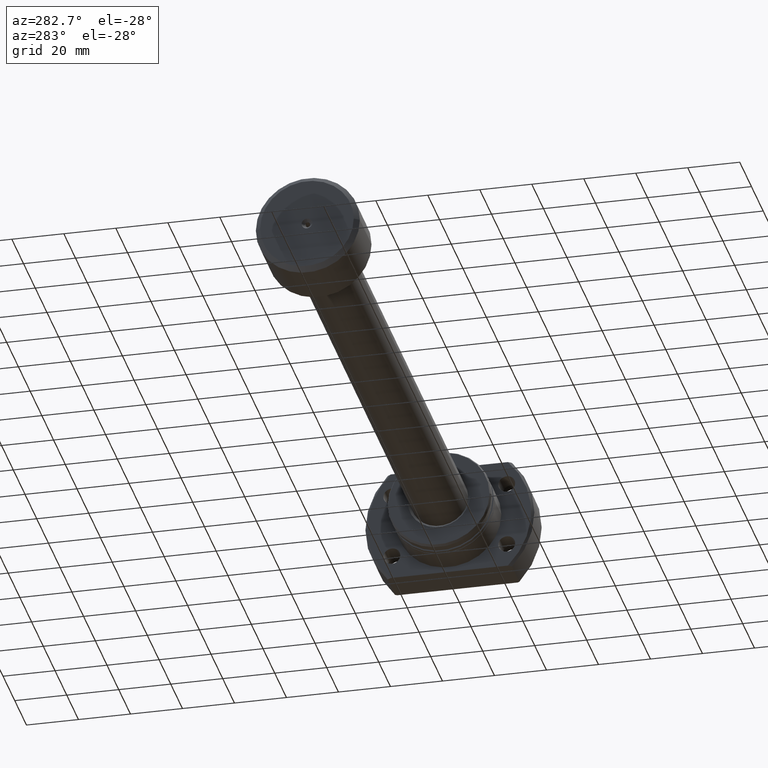
[diagram: clean part render]
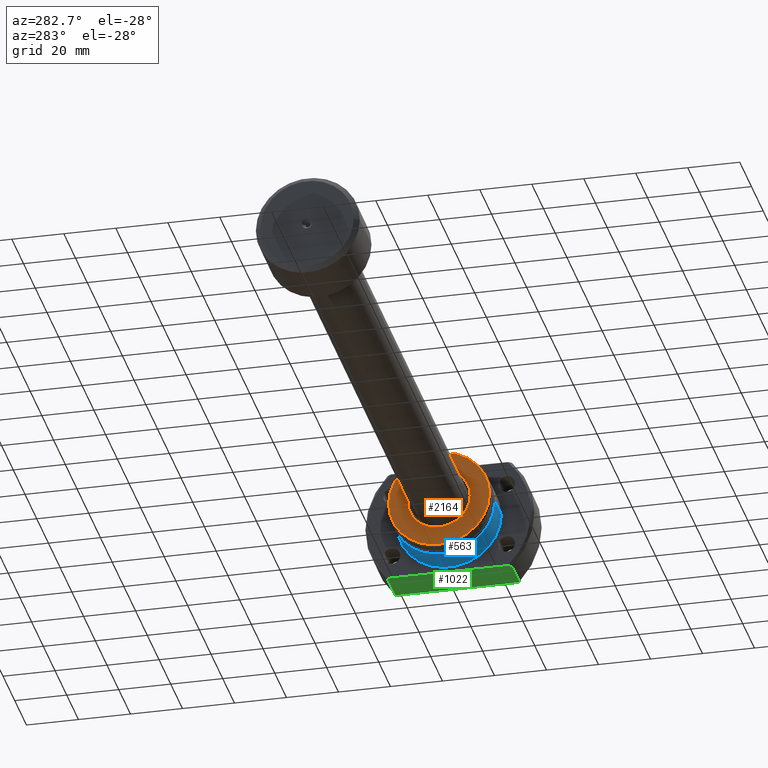
[diagram: same view with three faces highlighted in distinct colors, each labeled with its STEP entity id]
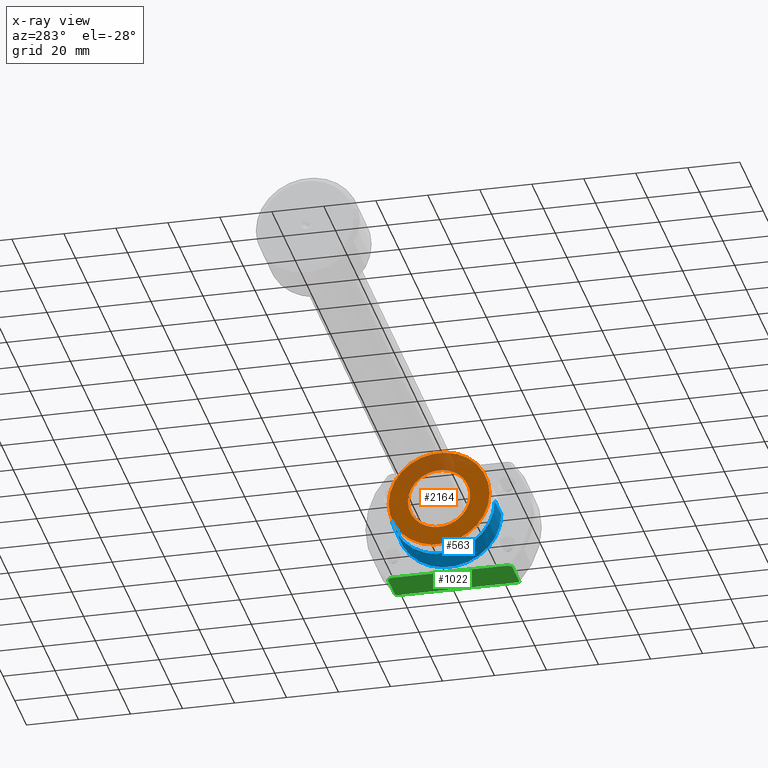
[diagram: x-ray of the same camera — body ghosted, the three highlighted faces saturated]
A machine part, auxiliary view with three faces highlighted in distinct colors.
The next image is the same camera in x-ray (body ghosted, the three faces saturated) — at least one of them is partly hidden behind the body in this view.
Their STEP definitions:

[orange] entity #2164 — the highlighted planar face has unit normal (1, 0, 0).
#71 = EDGE_CURVE ( 'NONE', #1028, #391, #2490, .T. ) ;
#119 = PLANE ( 'NONE',  #578 ) ;
#277 = DIRECTION ( 'NONE',  ( 1.000000000000000000, 2.721437331438560389E-17, -0.000000000000000000 ) ) ;
#331 = CARTESIAN_POINT ( 'NONE',  ( 1.141847105422589962E-15, -11.99999999999968203, 0.000000000000000000 ) ) ;
#391 = VERTEX_POINT ( 'NONE', #2303 ) ;
#578 = AXIS2_PLACEMENT_3D ( 'NONE', #1841, #2825, #2322 ) ;
#587 = CARTESIAN_POINT ( 'NONE',  ( 9.250066709254890749E-16, -2.566457008072278120E-29, 0.000000000000000000 ) ) ;
#728 = ORIENTED_EDGE ( 'NONE', *, *, #2056, .F. ) ;
#749 = DIRECTION ( 'NONE',  ( -2.721437331438560697E-17, 1.000000000000000000, 0.000000000000000000 ) ) ;
#765 = CARTESIAN_POINT ( 'NONE',  ( 0.000000000000000000, 0.000000000000000000, 0.000000000000000000 ) ) ;
#779 = DIRECTION ( 'NONE',  ( -2.721437331438560389E-17, 1.000000000000000000, 0.000000000000000000 ) ) ;
#1006 = AXIS2_PLACEMENT_3D ( 'NONE', #765, #2210, #749 ) ;
#1028 = VERTEX_POINT ( 'NONE', #2831 ) ;
#1048 = DIRECTION ( 'NONE',  ( 1.000000000000000000, 2.721437331438560389E-17, -0.000000000000000000 ) ) ;
#1122 = EDGE_LOOP ( 'NONE', ( #3084, #1725 ) ) ;
#1137 = DIRECTION ( 'NONE',  ( -2.721437331438560697E-17, 1.000000000000000000, 0.000000000000000000 ) ) ;
#1300 = ORIENTED_EDGE ( 'NONE', *, *, #71, .F. ) ;
#1501 = CARTESIAN_POINT ( 'NONE',  ( 9.250066709254890749E-16, -2.566457008072278120E-29, 0.000000000000000000 ) ) ;
#1591 = FACE_BOUND ( 'NONE', #1122, .T. ) ;
#1640 = VERTEX_POINT ( 'NONE', #331 ) ;
#1685 = DIRECTION ( 'NONE',  ( 1.000000000000000000, 2.721437331438560389E-17, -0.000000000000000000 ) ) ;
#1725 = ORIENTED_EDGE ( 'NONE', *, *, #2103, .T. ) ;
#1841 = CARTESIAN_POINT ( 'NONE',  ( 9.250066709254811863E-16, 2.517347686086308164E-32, 0.000000000000000000 ) ) ;
#2056 = EDGE_CURVE ( 'NONE', #391, #1028, #2543, .T. ) ;
#2088 = FACE_OUTER_BOUND ( 'NONE', #2638, .T. ) ;
#2103 = EDGE_CURVE ( 'NONE', #2213, #1640, #3131, .T. ) ;
#2164 = ADVANCED_FACE ( 'NONE', ( #1591, #2088 ), #119, .F. ) ;
#2210 = DIRECTION ( 'NONE',  ( 1.000000000000000000, 2.721437331438560389E-17, -0.000000000000000000 ) ) ;
#2213 = VERTEX_POINT ( 'NONE', #2600 ) ;
#2293 = AXIS2_PLACEMENT_3D ( 'NONE', #587, #1048, #2779 ) ;
#2303 = CARTESIAN_POINT ( 'NONE',  ( -5.285752405288245154E-16, 19.42264973081037027, 0.000000000000000000 ) ) ;
#2322 = DIRECTION ( 'NONE',  ( -2.721437331438560389E-17, 1.000000000000000000, 0.000000000000000000 ) ) ;
#2490 = CIRCLE ( 'NONE', #2751, 19.42264973081037027 ) ;
#2526 = EDGE_CURVE ( 'NONE', #1640, #2213, #2856, .T. ) ;
#2543 = CIRCLE ( 'NONE', #1006, 19.42264973081037027 ) ;
#2600 = CARTESIAN_POINT ( 'NONE',  ( 7.081662364283881881E-16, 12.00000000000037481, 1.469576158976869898E-15 ) ) ;
#2608 = CARTESIAN_POINT ( 'NONE',  ( 0.000000000000000000, 0.000000000000000000, 0.000000000000000000 ) ) ;
#2638 = EDGE_LOOP ( 'NONE', ( #728, #1300 ) ) ;
#2751 = AXIS2_PLACEMENT_3D ( 'NONE', #2608, #1685, #1137 ) ;
#2779 = DIRECTION ( 'NONE',  ( -2.721437331438560389E-17, 1.000000000000000000, 0.000000000000000000 ) ) ;
#2825 = DIRECTION ( 'NONE',  ( 1.000000000000000000, 2.721437331438560389E-17, -0.000000000000000000 ) ) ;
#2831 = CARTESIAN_POINT ( 'NONE',  ( 5.285752405288245154E-16, -19.42264973081037027, 2.413941090337209377E-15 ) ) ;
#2856 = CIRCLE ( 'NONE', #2293, 12.00000000000037481 ) ;
#3084 = ORIENTED_EDGE ( 'NONE', *, *, #2526, .T. ) ;
#3131 = CIRCLE ( 'NONE', #3188, 12.00000000000037481 ) ;
#3188 = AXIS2_PLACEMENT_3D ( 'NONE', #1501, #277, #779 ) ;

[blue] entity #563 — the highlighted cylindrical surface (partial cylindrical patch) has radius 20 mm, axis along (1, 0, 0).
#98 = DIRECTION ( 'NONE',  ( 1.000000000000000000, 2.721437331438560389E-17, -0.000000000000000000 ) ) ;
#107 = CIRCLE ( 'NONE', #2504, 19.99999999999999645 ) ;
#169 = CARTESIAN_POINT ( 'NONE',  ( 17.50000000000000000, 4.762515330017480942E-16, 0.000000000000000000 ) ) ;
#268 = AXIS2_PLACEMENT_3D ( 'NONE', #2082, #861, #1627 ) ;
#488 = DIRECTION ( 'NONE',  ( -4.336808689942018352E-17, 1.000000000000000000, 0.000000000000000000 ) ) ;
#563 = ADVANCED_FACE ( 'NONE', ( #635 ), #3064, .T. ) ;
#565 = LINE ( 'NONE', #1551, #3135 ) ;
#605 = LINE ( 'NONE', #2888, #1830 ) ;
#635 = FACE_OUTER_BOUND ( 'NONE', #2665, .T. ) ;
#725 = DIRECTION ( 'NONE',  ( 1.000000000000000000, 2.721437331438560389E-17, -0.000000000000000000 ) ) ;
#852 = AXIS2_PLACEMENT_3D ( 'NONE', #1713, #725, #488 ) ;
#861 = DIRECTION ( 'NONE',  ( 1.000000000000000000, 2.721437331438560389E-17, -0.000000000000000000 ) ) ;
#1087 = EDGE_CURVE ( 'NONE', #2408, #3023, #565, .T. ) ;
#1123 = DIRECTION ( 'NONE',  ( 1.000000000000000000, 2.721437331438560389E-17, -0.000000000000000000 ) ) ;
#1316 = CIRCLE ( 'NONE', #852, 19.99999999999999645 ) ;
#1317 = CARTESIAN_POINT ( 'NONE',  ( 17.50000000000000000, -19.99999999999999645, 2.449293598294706119E-15 ) ) ;
#1455 = ORIENTED_EDGE ( 'NONE', *, *, #1087, .F. ) ;
#1496 = EDGE_CURVE ( 'NONE', #3023, #2474, #107, .T. ) ;
#1533 = CARTESIAN_POINT ( 'NONE',  ( 6.499999999999783284, 19.99999999999999645, 0.000000000000000000 ) ) ;
#1551 = CARTESIAN_POINT ( 'NONE',  ( 31.50000000000000000, -19.99999999999999645, 2.449293598294706119E-15 ) ) ;
#1582 = DIRECTION ( 'NONE',  ( 0.000000000000000000, 1.000000000000000000, 0.000000000000000000 ) ) ;
#1627 = DIRECTION ( 'NONE',  ( 0.000000000000000000, 1.000000000000000000, 0.000000000000000000 ) ) ;
#1713 = CARTESIAN_POINT ( 'NONE',  ( 6.499999999999783284, 1.768934265435005073E-16, 0.000000000000000000 ) ) ;
#1830 = VECTOR ( 'NONE', #1888, 1000.000000000000000 ) ;
#1888 = DIRECTION ( 'NONE',  ( 1.000000000000000000, 2.721437331438560389E-17, -0.000000000000000000 ) ) ;
#2082 = CARTESIAN_POINT ( 'NONE',  ( 31.50000000000000000, 8.572527594031465301E-16, 0.000000000000000000 ) ) ;
#2264 = CARTESIAN_POINT ( 'NONE',  ( 17.50000000000000000, 19.99999999999999645, 0.000000000000000000 ) ) ;
#2408 = VERTEX_POINT ( 'NONE', #2505 ) ;
#2420 = ORIENTED_EDGE ( 'NONE', *, *, #1496, .F. ) ;
#2474 = VERTEX_POINT ( 'NONE', #2264 ) ;
#2504 = AXIS2_PLACEMENT_3D ( 'NONE', #169, #1123, #1582 ) ;
#2505 = CARTESIAN_POINT ( 'NONE',  ( 6.499999999999784173, -19.99999999999999645, 2.449293598294706119E-15 ) ) ;
#2664 = ORIENTED_EDGE ( 'NONE', *, *, #2717, .T. ) ;
#2665 = EDGE_LOOP ( 'NONE', ( #1455, #2664, #2860, #2420 ) ) ;
#2717 = EDGE_CURVE ( 'NONE', #2408, #2722, #1316, .T. ) ;
#2722 = VERTEX_POINT ( 'NONE', #1533 ) ;
#2860 = ORIENTED_EDGE ( 'NONE', *, *, #3037, .T. ) ;
#2888 = CARTESIAN_POINT ( 'NONE',  ( 31.50000000000000000, 19.99999999999999645, 0.000000000000000000 ) ) ;
#3023 = VERTEX_POINT ( 'NONE', #1317 ) ;
#3037 = EDGE_CURVE ( 'NONE', #2722, #2474, #605, .T. ) ;
#3064 = CYLINDRICAL_SURFACE ( 'NONE', #268, 19.99999999999999645 ) ;
#3135 = VECTOR ( 'NONE', #98, 1000.000000000000000 ) ;

[green] entity #1022 — the highlighted planar face has unit normal (0, 0, 1).
#16 = LINE ( 'NONE', #2744, #281 ) ;
#19 = VECTOR ( 'NONE', #613, 1000.000000000000000 ) ;
#24 = ORIENTED_EDGE ( 'NONE', *, *, #1147, .F. ) ;
#44 = CARTESIAN_POINT ( 'NONE',  ( 18.49999999999998934, 23.92174742781163133, -21.99999999999998934 ) ) ;
#57 = CARTESIAN_POINT ( 'NONE',  ( 31.33413051841647246, 23.46631242917946381, -22.00000000000000355 ) ) ;
#196 = CARTESIAN_POINT ( 'NONE',  ( 31.50000000000000000, -23.23790007724450035, -22.00000000000000355 ) ) ;
#199 = VERTEX_POINT ( 'NONE', #2511 ) ;
#281 = VECTOR ( 'NONE', #2258, 1000.000000000000000 ) ;
#302 = CARTESIAN_POINT ( 'NONE',  ( 17.50000000000000000, -19.99999999999999645, -22.00000000000000355 ) ) ;
#435 = VERTEX_POINT ( 'NONE', #3203 ) ;
#444 = CARTESIAN_POINT ( 'NONE',  ( 31.00000000000007461, -23.92174742781125829, -22.00000000000000355 ) ) ;
#489 = CARTESIAN_POINT ( 'NONE',  ( 17.50000000000001776, -22.54440063519093940, -22.00000000000000355 ) ) ;
#542 = CARTESIAN_POINT ( 'NONE',  ( 31.16738888422669262, -23.69433349186106597, -22.00000000000000355 ) ) ;
#596 = VERTEX_POINT ( 'NONE', #444 ) ;
#599 = CARTESIAN_POINT ( 'NONE',  ( 17.82998096711740033, -23.00546414414808183, -22.00000000000000355 ) ) ;
#600 = CARTESIAN_POINT ( 'NONE',  ( 31.16744843440999091, 23.69425258719626370, -22.00000000000000355 ) ) ;
#612 = CARTESIAN_POINT ( 'NONE',  ( 18.49999999999998934, -23.92174742781089947, -22.00000000000000355 ) ) ;
#613 = DIRECTION ( 'NONE',  ( -2.721437331438560389E-17, 1.000000000000000000, -0.000000000000000000 ) ) ;
#616 = CARTESIAN_POINT ( 'NONE',  ( -1.637578961322105897E-12, -23.92174742781036301, -22.00000000000000355 ) ) ;
#645 = ORIENTED_EDGE ( 'NONE', *, *, #2606, .F. ) ;
#707 = ORIENTED_EDGE ( 'NONE', *, *, #1682, .F. ) ;
#713 = VERTEX_POINT ( 'NONE', #196 ) ;
#884 = ORIENTED_EDGE ( 'NONE', *, *, #2157, .F. ) ;
#966 = CARTESIAN_POINT ( 'NONE',  ( 18.16368991444090497, 23.46483775540317041, -22.00000000000000355 ) ) ;
#1022 = ADVANCED_FACE ( 'NONE', ( #1322 ), #2563, .F. ) ;
#1059 = AXIS2_PLACEMENT_3D ( 'NONE', #2775, #2316, #1095 ) ;
#1072 = LINE ( 'NONE', #302, #2547 ) ;
#1095 = DIRECTION ( 'NONE',  ( 1.000000000000000000, 0.000000000000000000, -0.000000000000000000 ) ) ;
#1100 = DIRECTION ( 'NONE',  ( 1.000000000000000000, -2.886466111666351885E-14, -0.000000000000000000 ) ) ;
#1147 = EDGE_CURVE ( 'NONE', #596, #713, #1878, .T. ) ;
#1246 = EDGE_LOOP ( 'NONE', ( #3143, #707, #2479, #24, #884, #2110, #2844, #645 ) ) ;
#1308 = LINE ( 'NONE', #616, #2656 ) ;
#1322 = FACE_OUTER_BOUND ( 'NONE', #1246, .T. ) ;
#1420 = EDGE_CURVE ( 'NONE', #713, #2462, #2266, .T. ) ;
#1425 = VERTEX_POINT ( 'NONE', #44 ) ;
#1508 = CARTESIAN_POINT ( 'NONE',  ( 31.00000000000007461, -23.92174742781125829, -22.00000000000000355 ) ) ;
#1527 = CARTESIAN_POINT ( 'NONE',  ( 31.33407032320117125, -23.46639532164749298, -22.00000000000000355 ) ) ;
#1539 = VERTEX_POINT ( 'NONE', #489 ) ;
#1564 = CARTESIAN_POINT ( 'NONE',  ( 18.49999999999998934, -23.92174742781089947, -22.00000000000000355 ) ) ;
#1586 = CARTESIAN_POINT ( 'NONE',  ( 31.00000000000007461, 23.92174742781126895, -21.99999999999998934 ) ) ;
#1682 = EDGE_CURVE ( 'NONE', #2462, #199, #2071, .T. ) ;
#1837 = CARTESIAN_POINT ( 'NONE',  ( 31.50000000000000000, 23.23790007724450035, -22.00000000000000355 ) ) ;
#1847 = CARTESIAN_POINT ( 'NONE',  ( 17.50000000000000355, 22.54440063519089676, -22.00000000000000355 ) ) ;
#1878 = B_SPLINE_CURVE_WITH_KNOTS ( 'NONE', 3,
 ( #1508, #542, #1527, #2956 ),
 .UNSPECIFIED., .F., .F.,
 ( 4, 4 ),
 ( 0.03779112510166918876, 0.03863931077161771033 ),
 .UNSPECIFIED. ) ;
#2069 = B_SPLINE_CURVE_WITH_KNOTS ( 'NONE', 3,
 ( #2747, #599, #2834, #612 ),
 .UNSPECIFIED., .F., .F.,
 ( 4, 4 ),
 ( 0.08934887722955515976, 0.09106053602301780736 ),
 .UNSPECIFIED. ) ;
#2071 = B_SPLINE_CURVE_WITH_KNOTS ( 'NONE', 3,
 ( #1837, #57, #600, #1586 ),
 .UNSPECIFIED., .F., .F.,
 ( 4, 4 ),
 ( 0.09020251661949948985, 0.09105413011805403578 ),
 .UNSPECIFIED. ) ;
#2110 = ORIENTED_EDGE ( 'NONE', *, *, #2527, .F. ) ;
#2157 = EDGE_CURVE ( 'NONE', #3029, #596, #1308, .T. ) ;
#2171 = CARTESIAN_POINT ( 'NONE',  ( 18.49999999999998934, 23.92174742781163133, -21.99999999999998934 ) ) ;
#2258 = DIRECTION ( 'NONE',  ( 1.000000000000000000, -2.886466111666351885E-14, -0.000000000000000000 ) ) ;
#2266 = LINE ( 'NONE', #2295, #19 ) ;
#2295 = CARTESIAN_POINT ( 'NONE',  ( 31.50000000000000000, -32.00000000000000000, -22.00000000000000355 ) ) ;
#2316 = DIRECTION ( 'NONE',  ( 0.000000000000000000, 0.000000000000000000, 1.000000000000000000 ) ) ;
#2400 = EDGE_CURVE ( 'NONE', #435, #1539, #1072, .T. ) ;
#2418 = CARTESIAN_POINT ( 'NONE',  ( 17.83023180395318263, 23.00581462409452982, -22.00000000000000355 ) ) ;
#2462 = VERTEX_POINT ( 'NONE', #3027 ) ;
#2479 = ORIENTED_EDGE ( 'NONE', *, *, #1420, .F. ) ;
#2511 = CARTESIAN_POINT ( 'NONE',  ( 31.00000000000007461, 23.92174742781126895, -21.99999999999998934 ) ) ;
#2527 = EDGE_CURVE ( 'NONE', #1539, #3029, #2069, .T. ) ;
#2547 = VECTOR ( 'NONE', #2566, 1000.000000000000000 ) ;
#2563 = PLANE ( 'NONE',  #1059 ) ;
#2566 = DIRECTION ( 'NONE',  ( 2.721437331438560389E-17, -1.000000000000000000, 0.000000000000000000 ) ) ;
#2606 = EDGE_CURVE ( 'NONE', #1425, #435, #2960, .T. ) ;
#2656 = VECTOR ( 'NONE', #1100, 1000.000000000000000 ) ;
#2744 = CARTESIAN_POINT ( 'NONE',  ( -2.498001805406602216E-13, 23.92174742781216423, -21.99999999999998934 ) ) ;
#2747 = CARTESIAN_POINT ( 'NONE',  ( 17.50000000000001776, -22.54440063519093940, -22.00000000000000355 ) ) ;
#2771 = EDGE_CURVE ( 'NONE', #1425, #199, #16, .T. ) ;
#2775 = CARTESIAN_POINT ( 'NONE',  ( -2.498001805406602216E-13, 23.92174742781217489, -22.00000000000000355 ) ) ;
#2834 = CARTESIAN_POINT ( 'NONE',  ( 18.16344437228347886, -23.46450416271138906, -22.00000000000000355 ) ) ;
#2844 = ORIENTED_EDGE ( 'NONE', *, *, #2400, .F. ) ;
#2956 = CARTESIAN_POINT ( 'NONE',  ( 31.50000000000000000, -23.23790007724450035, -22.00000000000000355 ) ) ;
#2960 = B_SPLINE_CURVE_WITH_KNOTS ( 'NONE', 3,
 ( #2171, #966, #2418, #1847 ),
 .UNSPECIFIED., .F., .F.,
 ( 4, 4 ),
 ( 0.03779752499755586331, 0.03950166028446448763 ),
 .UNSPECIFIED. ) ;
#3027 = CARTESIAN_POINT ( 'NONE',  ( 31.50000000000000000, 23.23790007724450035, -22.00000000000000355 ) ) ;
#3029 = VERTEX_POINT ( 'NONE', #1564 ) ;
#3143 = ORIENTED_EDGE ( 'NONE', *, *, #2771, .T. ) ;
#3203 = CARTESIAN_POINT ( 'NONE',  ( 17.50000000000000355, 22.54440063519089676, -22.00000000000000355 ) ) ;